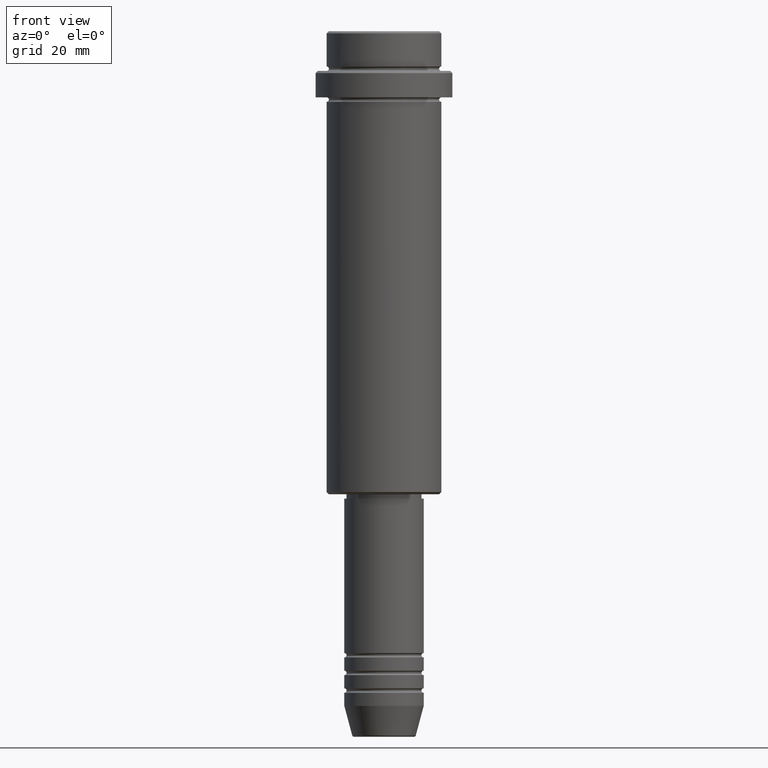
[diagram: clean part render]
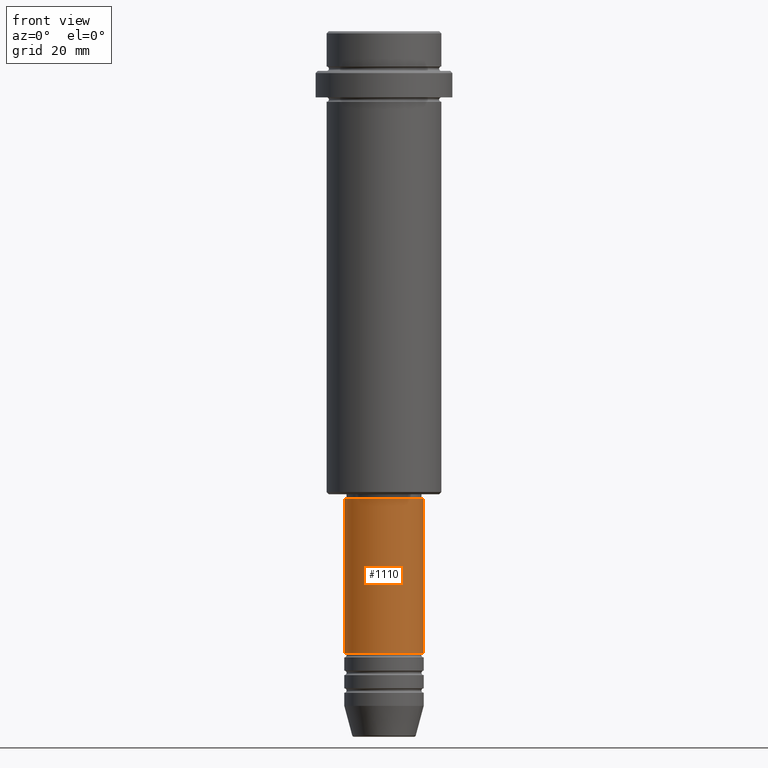
[diagram: same view with one face highlighted and labeled with its STEP entity id]
A machine part, front view. The second image highlights one B-rep face of the part: STEP entity #1110.
In plain terms, the highlighted cylindrical surface (partial cylindrical patch) has radius 9 mm, axis along (-0, -0, 1).
Its self-contained STEP definition (entity closure, byte-faithful):
#16 = AXIS2_PLACEMENT_3D ( 'NONE', #1241, #806, #934 ) ;
#22 = EDGE_CURVE ( 'NONE', #1207, #834, #824, .T. ) ;
#101 = CYLINDRICAL_SURFACE ( 'NONE', #685, 9.000000000000001776 ) ;
#189 = EDGE_CURVE ( 'NONE', #1207, #1105, #1173, .T. ) ;
#202 = DIRECTION ( 'NONE',  ( -0.000000000000000000, -0.000000000000000000, 1.000000000000000000 ) ) ;
#326 = FACE_OUTER_BOUND ( 'NONE', #1029, .T. ) ;
#343 = CARTESIAN_POINT ( 'NONE',  ( -9.000000000000000000, 1.102182119232617714E-15, -140.9999999999999147 ) ) ;
#361 = ORIENTED_EDGE ( 'NONE', *, *, #703, .F. ) ;
#397 = VERTEX_POINT ( 'NONE', #456 ) ;
#428 = CARTESIAN_POINT ( 'NONE',  ( 0.000000000000000000, 0.000000000000000000, -106.0000000000000142 ) ) ;
#456 = CARTESIAN_POINT ( 'NONE',  ( 9.000000000000001776, 0.000000000000000000, -106.0000000000000142 ) ) ;
#554 = LINE ( 'NONE', #1060, #759 ) ;
#557 = ORIENTED_EDGE ( 'NONE', *, *, #1087, .T. ) ;
#637 = DIRECTION ( 'NONE',  ( -0.000000000000000000, -0.000000000000000000, 1.000000000000000000 ) ) ;
#642 = DIRECTION ( 'NONE',  ( -0.000000000000000000, -0.000000000000000000, 1.000000000000000000 ) ) ;
#685 = AXIS2_PLACEMENT_3D ( 'NONE', #745, #1168, #967 ) ;
#703 = EDGE_CURVE ( 'NONE', #1105, #397, #878, .T. ) ;
#745 = CARTESIAN_POINT ( 'NONE',  ( 0.000000000000000000, 0.000000000000000000, 0.000000000000000000 ) ) ;
#759 = VECTOR ( 'NONE', #637, 1000.000000000000000 ) ;
#767 = DIRECTION ( 'NONE',  ( 1.000000000000000000, 0.000000000000000000, 0.000000000000000000 ) ) ;
#781 = CARTESIAN_POINT ( 'NONE',  ( -9.000000000000001776, 1.102182119232617911E-15, 0.000000000000000000 ) ) ;
#798 = AXIS2_PLACEMENT_3D ( 'NONE', #428, #202, #767 ) ;
#806 = DIRECTION ( 'NONE',  ( -0.000000000000000000, -0.000000000000000000, 1.000000000000000000 ) ) ;
#824 = CIRCLE ( 'NONE', #16, 9.000000000000000000 ) ;
#834 = VERTEX_POINT ( 'NONE', #1230 ) ;
#878 = CIRCLE ( 'NONE', #798, 9.000000000000001776 ) ;
#934 = DIRECTION ( 'NONE',  ( 1.000000000000000000, 0.000000000000000000, 0.000000000000000000 ) ) ;
#946 = VECTOR ( 'NONE', #642, 1000.000000000000000 ) ;
#967 = DIRECTION ( 'NONE',  ( 1.000000000000000000, 0.000000000000000000, 0.000000000000000000 ) ) ;
#1029 = EDGE_LOOP ( 'NONE', ( #1280, #1089, #557, #361 ) ) ;
#1060 = CARTESIAN_POINT ( 'NONE',  ( 9.000000000000001776, 0.000000000000000000, 0.000000000000000000 ) ) ;
#1087 = EDGE_CURVE ( 'NONE', #834, #397, #554, .T. ) ;
#1089 = ORIENTED_EDGE ( 'NONE', *, *, #22, .T. ) ;
#1105 = VERTEX_POINT ( 'NONE', #1288 ) ;
#1110 = ADVANCED_FACE ( 'NONE', ( #326 ), #101, .T. ) ;
#1168 = DIRECTION ( 'NONE',  ( -0.000000000000000000, -0.000000000000000000, 1.000000000000000000 ) ) ;
#1173 = LINE ( 'NONE', #781, #946 ) ;
#1207 = VERTEX_POINT ( 'NONE', #343 ) ;
#1230 = CARTESIAN_POINT ( 'NONE',  ( 9.000000000000000000, 0.000000000000000000, -140.9999999999999147 ) ) ;
#1241 = CARTESIAN_POINT ( 'NONE',  ( 0.000000000000000000, 0.000000000000000000, -140.9999999999999147 ) ) ;
#1280 = ORIENTED_EDGE ( 'NONE', *, *, #189, .F. ) ;
#1288 = CARTESIAN_POINT ( 'NONE',  ( -9.000000000000001776, 1.102182119232617911E-15, -106.0000000000000142 ) ) ;